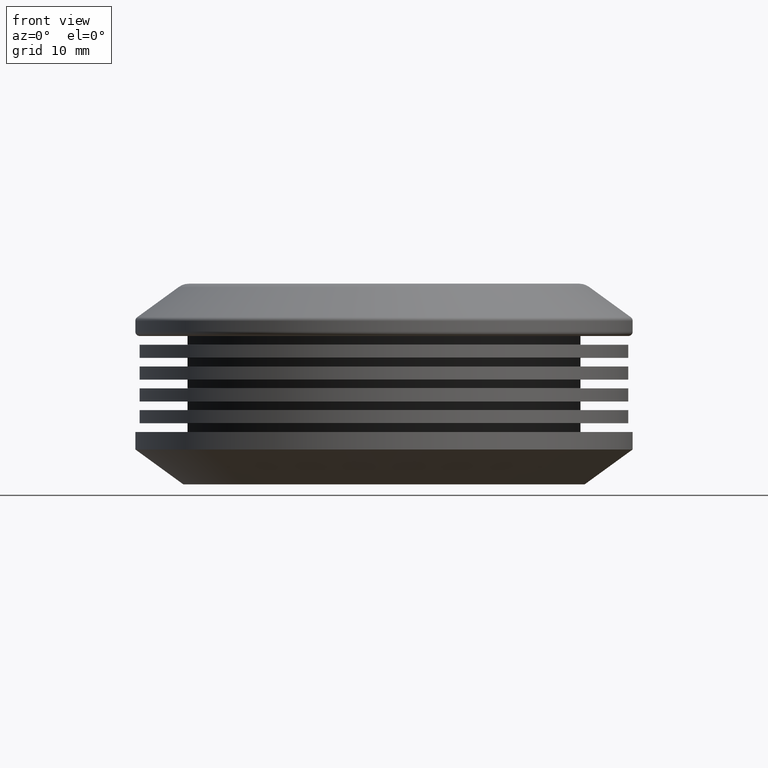
[diagram: clean part render]
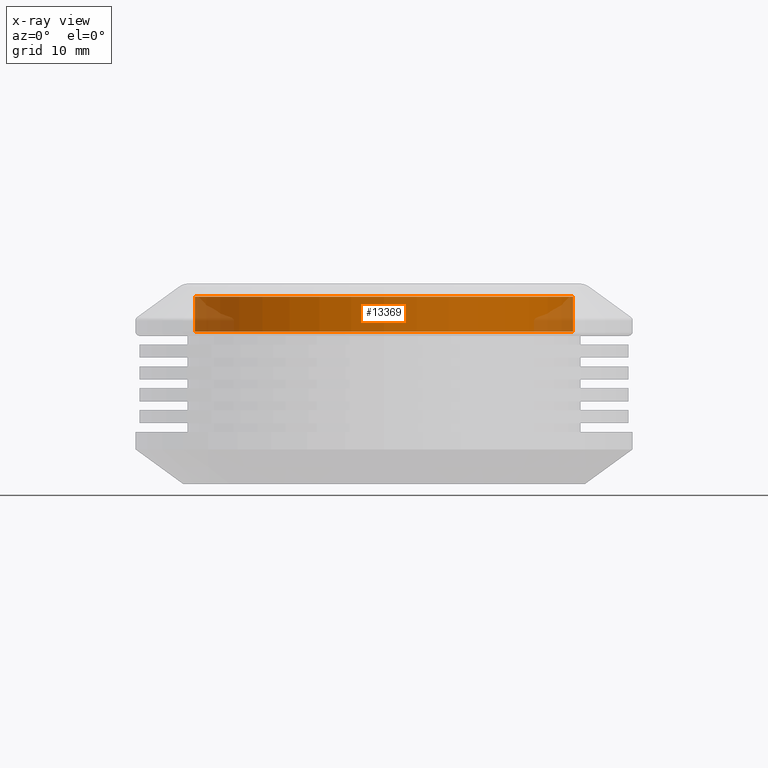
[diagram: x-ray — body ghosted, one internal face saturated and labeled with its STEP entity id]
A machine part, front view, then the same camera in x-ray: the body is ghosted and one INTERNAL B-rep face — a face not visible from any outside direction — is saturated and labeled: STEP entity #13369.
In plain terms, the highlighted cylindrical surface (partial cylindrical patch) has radius 21.67 mm, axis along (0, 0, 1).
Its self-contained STEP definition (entity closure, byte-faithful):
#786 = AXIS2_PLACEMENT_3D ( 'NONE', #7163, #3824, #3778 ) ;
#873 = DIRECTION ( 'NONE',  ( -0.0000000000000000000, -0.0000000000000000000, 1.000000000000000000 ) ) ;
#1878 = CARTESIAN_POINT ( 'NONE',  ( -21.67000000000000200, 2.653809613752314800E-015, 3.000000000000000900 ) ) ;
#1940 = EDGE_CURVE ( 'NONE', #10556, #4533, #13656, .T. ) ;
#2758 = DIRECTION ( 'NONE',  ( -0.0000000000000000000, -0.0000000000000000000, 1.000000000000000000 ) ) ;
#2932 = CARTESIAN_POINT ( 'NONE',  ( -21.67000000000000200, 0.0000000000000000000, -2.500000000000000400 ) ) ;
#3117 = DIRECTION ( 'NONE',  ( -0.0000000000000000000, -0.0000000000000000000, 1.000000000000000000 ) ) ;
#3125 = FACE_OUTER_BOUND ( 'NONE', #6674, .T. ) ;
#3397 = DIRECTION ( 'NONE',  ( 1.000000000000000000, 0.0000000000000000000, 0.0000000000000000000 ) ) ;
#3513 = VECTOR ( 'NONE', #873, 1000.000000000000000 ) ;
#3593 = AXIS2_PLACEMENT_3D ( 'NONE', #13516, #10267, #3397 ) ;
#3778 = DIRECTION ( 'NONE',  ( 1.000000000000000000, 0.0000000000000000000, 0.0000000000000000000 ) ) ;
#3824 = DIRECTION ( 'NONE',  ( -0.0000000000000000000, -0.0000000000000000000, 1.000000000000000000 ) ) ;
#4149 = EDGE_CURVE ( 'NONE', #10556, #8657, #8607, .T. ) ;
#4426 = VERTEX_POINT ( 'NONE', #10222 ) ;
#4533 = VERTEX_POINT ( 'NONE', #13765 ) ;
#5164 = CIRCLE ( 'NONE', #786, 21.67000000000000200 ) ;
#5984 = ORIENTED_EDGE ( 'NONE', *, *, #4149, .F. ) ;
#6674 = EDGE_LOOP ( 'NONE', ( #5984, #11910, #14386, #11119 ) ) ;
#6752 = CARTESIAN_POINT ( 'NONE',  ( 21.67000000000000200, 2.684425783730998600E-015, -2.500000000000000400 ) ) ;
#7163 = CARTESIAN_POINT ( 'NONE',  ( 0.0000000000000000000, 0.0000000000000000000, 1.500000000000000700 ) ) ;
#8112 = EDGE_CURVE ( 'NONE', #4533, #4426, #5164, .T. ) ;
#8607 = CIRCLE ( 'NONE', #3593, 21.67000000000000200 ) ;
#8657 = VERTEX_POINT ( 'NONE', #6752 ) ;
#9128 = CARTESIAN_POINT ( 'NONE',  ( 21.67000000000000200, 0.0000000000000000000, 3.000000000000000900 ) ) ;
#9702 = EDGE_CURVE ( 'NONE', #8657, #4426, #13370, .T. ) ;
#10222 = CARTESIAN_POINT ( 'NONE',  ( 21.67000000000000200, 0.0000000000000000000, 1.500000000000000700 ) ) ;
#10267 = DIRECTION ( 'NONE',  ( -0.0000000000000000000, -0.0000000000000000000, 1.000000000000000000 ) ) ;
#10556 = VERTEX_POINT ( 'NONE', #2932 ) ;
#10623 = VECTOR ( 'NONE', #3117, 1000.000000000000000 ) ;
#10789 = DIRECTION ( 'NONE',  ( 1.000000000000000000, 0.0000000000000000000, 0.0000000000000000000 ) ) ;
#11119 = ORIENTED_EDGE ( 'NONE', *, *, #9702, .F. ) ;
#11783 = AXIS2_PLACEMENT_3D ( 'NONE', #14030, #2758, #10789 ) ;
#11910 = ORIENTED_EDGE ( 'NONE', *, *, #1940, .T. ) ;
#12260 = CYLINDRICAL_SURFACE ( 'NONE', #11783, 21.67000000000000200 ) ;
#13369 = ADVANCED_FACE ( 'NONE', ( #3125 ), #12260, .F. ) ;
#13370 = LINE ( 'NONE', #9128, #3513 ) ;
#13516 = CARTESIAN_POINT ( 'NONE',  ( 0.0000000000000000000, 0.0000000000000000000, -2.500000000000000400 ) ) ;
#13656 = LINE ( 'NONE', #1878, #10623 ) ;
#13765 = CARTESIAN_POINT ( 'NONE',  ( -21.67000000000000200, 2.653809613752314800E-015, 1.500000000000000700 ) ) ;
#14030 = CARTESIAN_POINT ( 'NONE',  ( 0.0000000000000000000, 0.0000000000000000000, 3.000000000000000900 ) ) ;
#14386 = ORIENTED_EDGE ( 'NONE', *, *, #8112, .T. ) ;